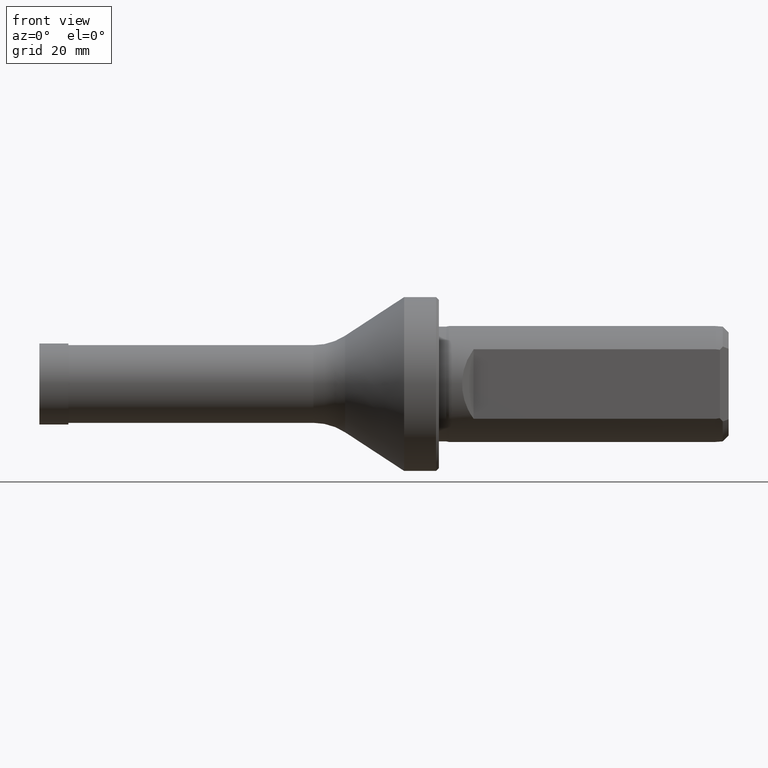
[diagram: clean part render]
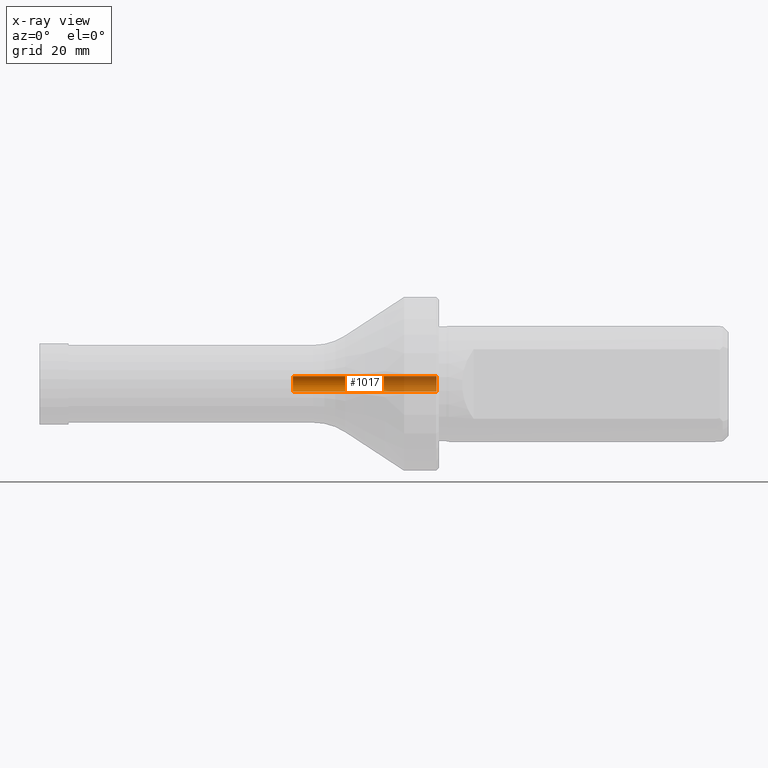
[diagram: x-ray — body ghosted, one internal face saturated and labeled with its STEP entity id]
A machine part, front view, then the same camera in x-ray: the body is ghosted and one INTERNAL B-rep face — a face not visible from any outside direction — is saturated and labeled: STEP entity #1017.
In plain terms, the highlighted cylindrical surface (edge-blend (fillet) strip) has radius 1.35 mm, axis along (-1, -0, -0).
Its self-contained STEP definition (entity closure, byte-faithful):
#22 = AXIS2_PLACEMENT_3D ( 'NONE', #490, #488, #483 ) ;
#31 = AXIS2_PLACEMENT_3D ( 'NONE', #192, #161, #178 ) ;
#37 = CARTESIAN_POINT ( 'NONE',  ( 68.05944059763207600, 1.653273178848927900E-016, -1.350000000000000100 ) ) ;
#38 = AXIS2_PLACEMENT_3D ( 'NONE', #500, #499, #497 ) ;
#76 = DIRECTION ( 'NONE',  ( -1.000000000000000000, -0.0000000000000000000, -0.0000000000000000000 ) ) ;
#149 = CARTESIAN_POINT ( 'NONE',  ( 0.0000000000000000000, 0.0000000000000000000, 1.350000000000001900 ) ) ;
#161 = DIRECTION ( 'NONE',  ( -1.000000000000000000, -0.0000000000000000000, -0.0000000000000000000 ) ) ;
#178 = DIRECTION ( 'NONE',  ( 0.0000000000000000000, 0.0000000000000000000, 1.000000000000000000 ) ) ;
#192 = CARTESIAN_POINT ( 'NONE',  ( 0.0000000000000000000, 0.0000000000000000000, 0.0000000000000000000 ) ) ;
#259 = CARTESIAN_POINT ( 'NONE',  ( 68.05944059763207600, 0.0000000000000000000, 1.350000000000000100 ) ) ;
#260 = ORIENTED_EDGE ( 'NONE', *, *, #851, .F. ) ;
#308 = ORIENTED_EDGE ( 'NONE', *, *, #349, .T. ) ;
#325 = DIRECTION ( 'NONE',  ( -1.000000000000000000, -0.0000000000000000000, -0.0000000000000000000 ) ) ;
#342 = EDGE_LOOP ( 'NONE', ( #260, #445, #308, #1041 ) ) ;
#349 = EDGE_CURVE ( 'NONE', #823, #789, #986, .T. ) ;
#441 = CIRCLE ( 'NONE', #22, 1.350000000000000100 ) ;
#445 = ORIENTED_EDGE ( 'NONE', *, *, #1055, .F. ) ;
#451 = CYLINDRICAL_SURFACE ( 'NONE', #31, 1.350000000000001900 ) ;
#456 = CIRCLE ( 'NONE', #38, 1.350000000000003600 ) ;
#474 = FACE_OUTER_BOUND ( 'NONE', #342, .T. ) ;
#483 = DIRECTION ( 'NONE',  ( 0.0000000000000000000, 0.0000000000000000000, 1.000000000000000000 ) ) ;
#488 = DIRECTION ( 'NONE',  ( -1.000000000000000000, -0.0000000000000000000, -0.0000000000000000000 ) ) ;
#490 = CARTESIAN_POINT ( 'NONE',  ( 68.05944059763207600, 0.0000000000000000000, 0.0000000000000000000 ) ) ;
#496 = CARTESIAN_POINT ( 'NONE',  ( 43.26116183568720400, 0.0000000000000000000, -1.350000000000003400 ) ) ;
#497 = DIRECTION ( 'NONE',  ( 0.0000000000000000000, 0.0000000000000000000, 1.000000000000000000 ) ) ;
#499 = DIRECTION ( 'NONE',  ( -1.000000000000000000, -0.0000000000000000000, -0.0000000000000000000 ) ) ;
#500 = CARTESIAN_POINT ( 'NONE',  ( 43.26116183568720400, 0.0000000000000000000, 0.0000000000000000000 ) ) ;
#515 = CARTESIAN_POINT ( 'NONE',  ( 43.26116183568720400, 1.653273178848930800E-016, 1.350000000000003400 ) ) ;
#642 = VECTOR ( 'NONE', #325, 1000.000000000000000 ) ;
#648 = VERTEX_POINT ( 'NONE', #37 ) ;
#664 = LINE ( 'NONE', #1025, #642 ) ;
#789 = VERTEX_POINT ( 'NONE', #515 ) ;
#823 = VERTEX_POINT ( 'NONE', #259 ) ;
#851 = EDGE_CURVE ( 'NONE', #648, #1062, #664, .T. ) ;
#986 = LINE ( 'NONE', #149, #1014 ) ;
#1014 = VECTOR ( 'NONE', #76, 1000.000000000000000 ) ;
#1017 = ADVANCED_FACE ( 'NONE', ( #474 ), #451, .F. ) ;
#1025 = CARTESIAN_POINT ( 'NONE',  ( 0.0000000000000000000, 1.653273178848929100E-016, -1.350000000000001900 ) ) ;
#1041 = ORIENTED_EDGE ( 'NONE', *, *, #1047, .T. ) ;
#1047 = EDGE_CURVE ( 'NONE', #789, #1062, #456, .T. ) ;
#1055 = EDGE_CURVE ( 'NONE', #823, #648, #441, .T. ) ;
#1062 = VERTEX_POINT ( 'NONE', #496 ) ;